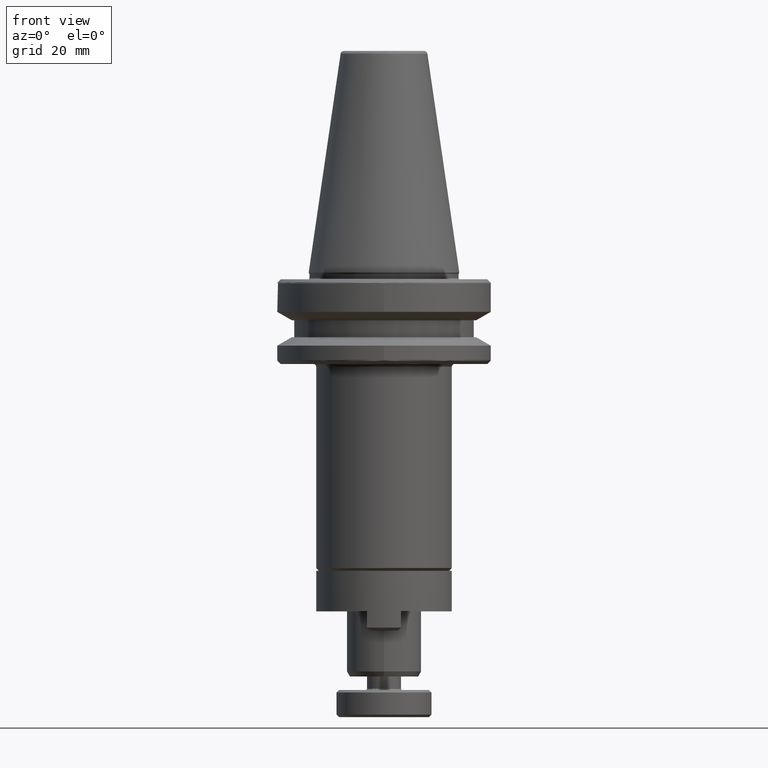
[diagram: clean part render]
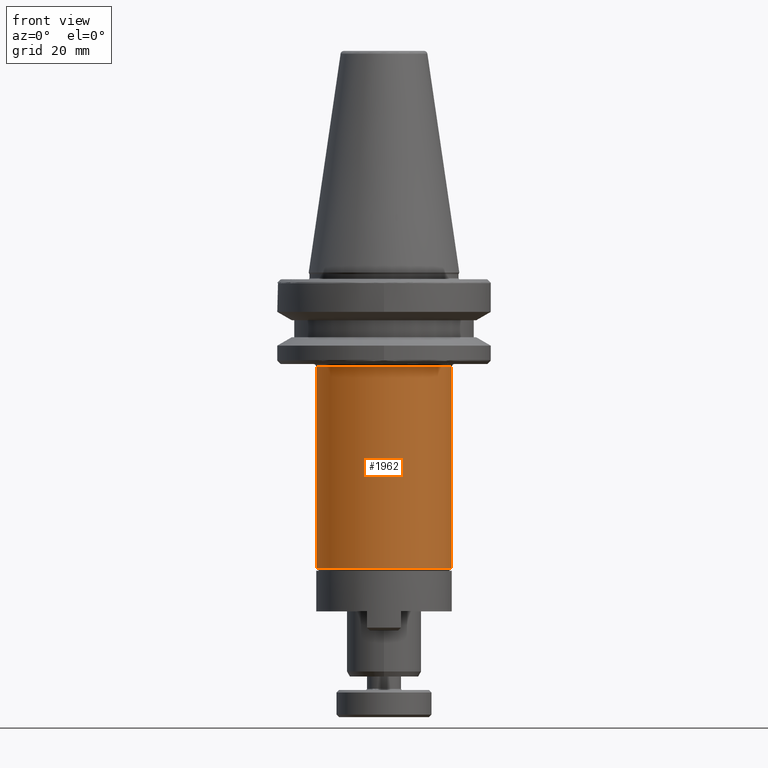
[diagram: same view with one face highlighted and labeled with its STEP entity id]
A machine part, front view. The second image highlights one B-rep face of the part: STEP entity #1962.
In plain terms, the highlighted cylindrical surface (partial cylindrical patch) has radius 20 mm, axis along (0, 0, 1).
Its self-contained STEP definition (entity closure, byte-faithful):
#99 = LINE ( 'NONE', #3362, #1190 ) ;
#132 = DIRECTION ( 'NONE',  ( 0.0000000000000000000, 0.0000000000000000000, 1.000000000000000000 ) ) ;
#160 = DIRECTION ( 'NONE',  ( 0.0000000000000000000, 0.0000000000000000000, 1.000000000000000000 ) ) ;
#178 = DIRECTION ( 'NONE',  ( 0.0000000000000000000, 0.0000000000000000000, 1.000000000000000000 ) ) ;
#229 = ORIENTED_EDGE ( 'NONE', *, *, #439, .T. ) ;
#274 = DIRECTION ( 'NONE',  ( 1.000000000000000000, 0.0000000000000000000, 1.734723475976807100E-016 ) ) ;
#307 = CARTESIAN_POINT ( 'NONE',  ( 0.0000000000000000000, 0.0000000000000000000, -21.56158881059203100 ) ) ;
#424 = CARTESIAN_POINT ( 'NONE',  ( -20.00000000000000000, 2.449293598294706500E-015, -80.96158881059201900 ) ) ;
#439 = EDGE_CURVE ( 'NONE', #2145, #856, #99, .T. ) ;
#564 = DIRECTION ( 'NONE',  ( 0.0000000000000000000, 0.0000000000000000000, 1.000000000000000000 ) ) ;
#777 = ORIENTED_EDGE ( 'NONE', *, *, #1447, .F. ) ;
#856 = VERTEX_POINT ( 'NONE', #3367 ) ;
#874 = FACE_OUTER_BOUND ( 'NONE', #960, .T. ) ;
#960 = EDGE_LOOP ( 'NONE', ( #1715, #3520, #229, #777 ) ) ;
#1070 = CARTESIAN_POINT ( 'NONE',  ( -20.00000000005410400, -6.153102855459935800E-009, -21.56158881043733900 ) ) ;
#1190 = VECTOR ( 'NONE', #160, 1000.000000000000000 ) ;
#1200 = CARTESIAN_POINT ( 'NONE',  ( -20.00000000000000000, 2.449293598294706500E-015, -80.96158881059197700 ) ) ;
#1279 = EDGE_CURVE ( 'NONE', #3093, #2773, #3564, .T. ) ;
#1310 = DIRECTION ( 'NONE',  ( 1.000000000000000000, 0.0000000000000000000, 0.0000000000000000000 ) ) ;
#1447 = EDGE_CURVE ( 'NONE', #2773, #856, #1937, .T. ) ;
#1715 = ORIENTED_EDGE ( 'NONE', *, *, #1279, .F. ) ;
#1751 = DIRECTION ( 'NONE',  ( 0.0000000000000000000, 0.0000000000000000000, 1.000000000000000000 ) ) ;
#1852 = CARTESIAN_POINT ( 'NONE',  ( 0.0000000000000000000, 0.0000000000000000000, -80.96158881059197700 ) ) ;
#1937 = CIRCLE ( 'NONE', #3489, 20.00000000000000000 ) ;
#1962 = ADVANCED_FACE ( 'NONE', ( #874 ), #2463, .T. ) ;
#2145 = VERTEX_POINT ( 'NONE', #2521 ) ;
#2159 = DIRECTION ( 'NONE',  ( 1.000000000000000000, 0.0000000000000000000, -2.775557561562891400E-015 ) ) ;
#2400 = AXIS2_PLACEMENT_3D ( 'NONE', #2789, #1751, #1310 ) ;
#2463 = CYLINDRICAL_SURFACE ( 'NONE', #2400, 20.00000000000000000 ) ;
#2521 = CARTESIAN_POINT ( 'NONE',  ( 20.00000000000000000, 0.0000000000000000000, -80.96158881059201900 ) ) ;
#2586 = EDGE_CURVE ( 'NONE', #3093, #2145, #3713, .T. ) ;
#2641 = AXIS2_PLACEMENT_3D ( 'NONE', #1852, #132, #2159 ) ;
#2773 = VERTEX_POINT ( 'NONE', #1070 ) ;
#2789 = CARTESIAN_POINT ( 'NONE',  ( 0.0000000000000000000, 0.0000000000000000000, -80.96158881059201900 ) ) ;
#3093 = VERTEX_POINT ( 'NONE', #1200 ) ;
#3362 = CARTESIAN_POINT ( 'NONE',  ( 20.00000000000000000, 0.0000000000000000000, -80.96158881059201900 ) ) ;
#3367 = CARTESIAN_POINT ( 'NONE',  ( 20.00000000005410100, -8.979362842873303400E-010, -21.56158881059203100 ) ) ;
#3489 = AXIS2_PLACEMENT_3D ( 'NONE', #307, #564, #274 ) ;
#3520 = ORIENTED_EDGE ( 'NONE', *, *, #2586, .T. ) ;
#3564 = LINE ( 'NONE', #424, #3648 ) ;
#3648 = VECTOR ( 'NONE', #178, 1000.000000000000000 ) ;
#3713 = CIRCLE ( 'NONE', #2641, 20.00000000000000000 ) ;